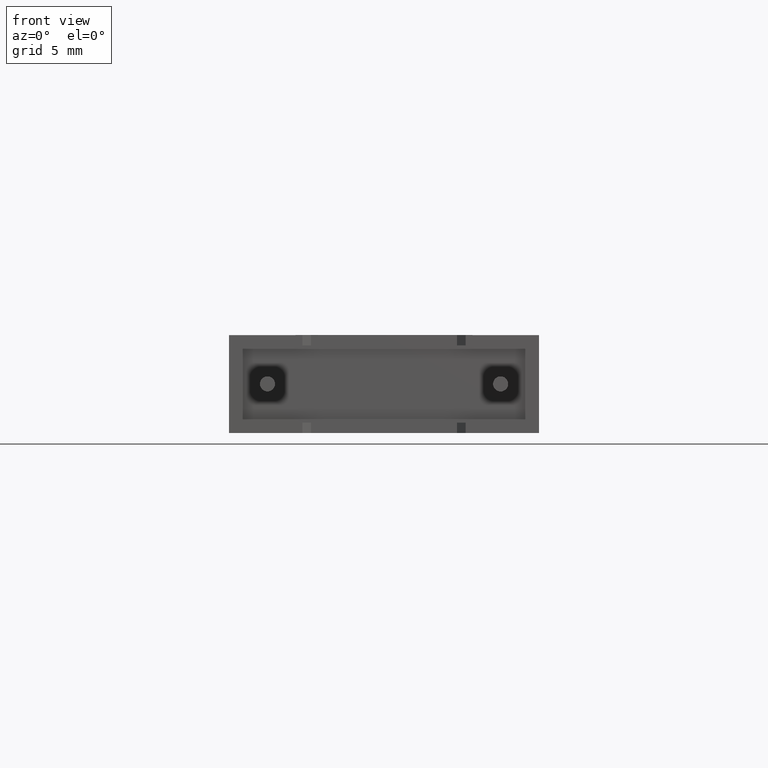
[diagram: clean part render]
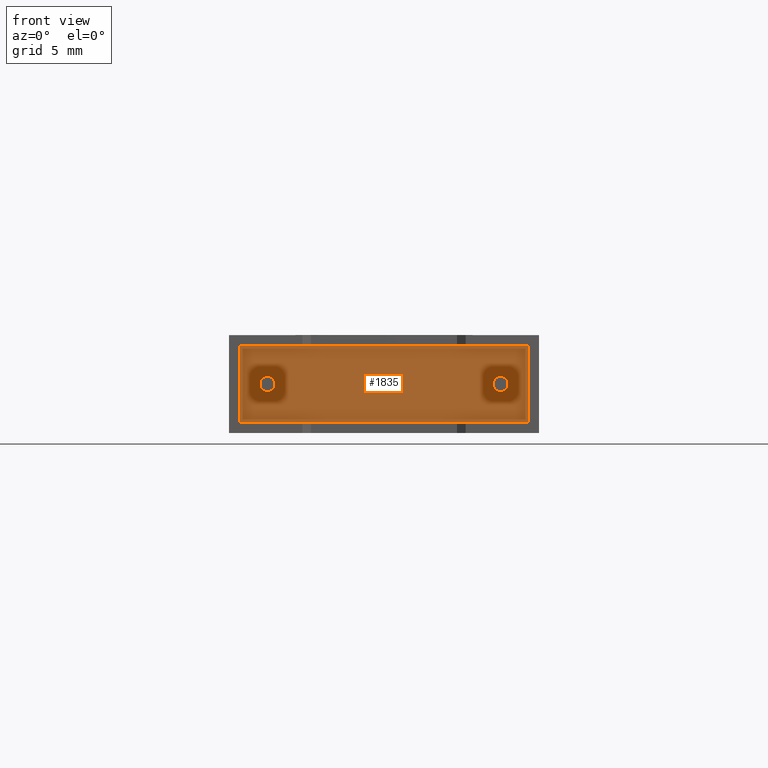
[diagram: same view with one face highlighted and labeled with its STEP entity id]
A machine part, front view. The second image highlights one B-rep face of the part: STEP entity #1835.
In plain terms, the highlighted planar face has unit normal (0, -1, 0).
Its self-contained STEP definition (entity closure, byte-faithful):
#60 = CIRCLE ( 'NONE', #1774, 0.3250000000000003997 ) ;
#152 = FACE_BOUND ( 'NONE', #722, .T. ) ;
#198 = DIRECTION ( 'NONE',  ( 0.000000000000000000, -1.000000000000000000, 0.000000000000000000 ) ) ;
#251 = LINE ( 'NONE', #1250, #1724 ) ;
#301 = ORIENTED_EDGE ( 'NONE', *, *, #1941, .T. ) ;
#313 = CARTESIAN_POINT ( 'NONE',  ( 11.65000000000000036, 0.7500000000000006661, 2.100000000000000089 ) ) ;
#340 = DIRECTION ( 'NONE',  ( 0.000000000000000000, 0.000000000000000000, -1.000000000000000000 ) ) ;
#400 = FACE_BOUND ( 'NONE', #1757, .T. ) ;
#419 = DIRECTION ( 'NONE',  ( 0.000000000000000000, -0.000000000000000000, -1.000000000000000000 ) ) ;
#429 = DIRECTION ( 'NONE',  ( 0.000000000000000000, 0.000000000000000000, -1.000000000000000000 ) ) ;
#432 = CARTESIAN_POINT ( 'NONE',  ( 12.85666671100000080, 0.7500000000000000000, 0.4433332890000000193 ) ) ;
#467 = EDGE_CURVE ( 'NONE', #1793, #1738, #251, .T. ) ;
#521 = LINE ( 'NONE', #2851, #1042 ) ;
#552 = DIRECTION ( 'NONE',  ( 1.000000000000000000, 0.000000000000000000, 8.734174259461895022E-18 ) ) ;
#613 = VERTEX_POINT ( 'NONE', #2684 ) ;
#691 = DIRECTION ( 'NONE',  ( 0.000000000000000000, -1.000000000000000000, 0.000000000000000000 ) ) ;
#713 = EDGE_CURVE ( 'NONE', #2536, #1793, #1587, .T. ) ;
#722 = EDGE_LOOP ( 'NONE', ( #2267, #2289 ) ) ;
#747 = ORIENTED_EDGE ( 'NONE', *, *, #1788, .F. ) ;
#796 = CIRCLE ( 'NONE', #2522, 0.3250000000000003997 ) ;
#913 = CARTESIAN_POINT ( 'NONE',  ( 1.650000000000000355, 0.7500000000000000000, 2.100000000000000089 ) ) ;
#937 = EDGE_CURVE ( 'NONE', #1738, #2846, #1507, .T. ) ;
#974 = ORIENTED_EDGE ( 'NONE', *, *, #1956, .F. ) ;
#1009 = ORIENTED_EDGE ( 'NONE', *, *, #713, .T. ) ;
#1042 = VECTOR ( 'NONE', #552, 1000.000000000000000 ) ;
#1122 = DIRECTION ( 'NONE',  ( 0.000000000000000000, 0.000000000000000000, 1.000000000000000000 ) ) ;
#1124 = ORIENTED_EDGE ( 'NONE', *, *, #937, .T. ) ;
#1131 = VECTOR ( 'NONE', #1122, 1000.000000000000000 ) ;
#1212 = DIRECTION ( 'NONE',  ( 0.000000000000000000, 0.000000000000000000, -1.000000000000000000 ) ) ;
#1250 = CARTESIAN_POINT ( 'NONE',  ( 12.85666671100000080, 0.7500000000000000000, 3.756666711000000713 ) ) ;
#1357 = DIRECTION ( 'NONE',  ( 0.000000000000000000, -1.000000000000000000, 0.000000000000000000 ) ) ;
#1405 = CARTESIAN_POINT ( 'NONE',  ( 1.650000000000000355, 0.7500000000000000000, 2.100000000000000089 ) ) ;
#1421 = AXIS2_PLACEMENT_3D ( 'NONE', #313, #1494, #2612 ) ;
#1439 = VERTEX_POINT ( 'NONE', #2108 ) ;
#1457 = VERTEX_POINT ( 'NONE', #2125 ) ;
#1479 = CIRCLE ( 'NONE', #2271, 0.3250000000000003997 ) ;
#1490 = CARTESIAN_POINT ( 'NONE',  ( 11.65000000000000036, 0.7500000000000006661, 2.100000000000000089 ) ) ;
#1494 = DIRECTION ( 'NONE',  ( 0.000000000000000000, -1.000000000000000000, 0.000000000000000000 ) ) ;
#1507 = LINE ( 'NONE', #2451, #2623 ) ;
#1587 = LINE ( 'NONE', #432, #1131 ) ;
#1629 = DIRECTION ( 'NONE',  ( 0.000000000000000000, 0.000000000000000000, -1.000000000000000000 ) ) ;
#1661 = DIRECTION ( 'NONE',  ( 0.000000000000000000, -1.000000000000000000, 0.000000000000000000 ) ) ;
#1724 = VECTOR ( 'NONE', #2891, 1000.000000000000000 ) ;
#1738 = VERTEX_POINT ( 'NONE', #2194 ) ;
#1757 = EDGE_LOOP ( 'NONE', ( #747, #974 ) ) ;
#1774 = AXIS2_PLACEMENT_3D ( 'NONE', #913, #691, #1629 ) ;
#1783 = CARTESIAN_POINT ( 'NONE',  ( 12.85666671100000080, 0.7500000000000000000, 3.756666711000000713 ) ) ;
#1788 = EDGE_CURVE ( 'NONE', #613, #1439, #2122, .T. ) ;
#1791 = CARTESIAN_POINT ( 'NONE',  ( 1.650000000000000355, 0.7500000000000000000, 2.425000000000001155 ) ) ;
#1793 = VERTEX_POINT ( 'NONE', #1783 ) ;
#1835 = ADVANCED_FACE ( 'NONE', ( #400, #2696, #152 ), #2938, .T. ) ;
#1849 = EDGE_CURVE ( 'NONE', #2987, #1457, #1479, .T. ) ;
#1941 = EDGE_CURVE ( 'NONE', #2846, #2536, #521, .T. ) ;
#1956 = EDGE_CURVE ( 'NONE', #1439, #613, #796, .T. ) ;
#2108 = CARTESIAN_POINT ( 'NONE',  ( 11.65000000000000036, 0.7500000000000006661, 1.774999999999999911 ) ) ;
#2122 = CIRCLE ( 'NONE', #1421, 0.3250000000000003997 ) ;
#2125 = CARTESIAN_POINT ( 'NONE',  ( 1.650000000000000355, 0.7500000000000000000, 1.774999999999999911 ) ) ;
#2147 = EDGE_CURVE ( 'NONE', #1457, #2987, #60, .T. ) ;
#2194 = CARTESIAN_POINT ( 'NONE',  ( 0.4433332890000000193, 0.7500000000000000000, 3.756666710999999381 ) ) ;
#2198 = EDGE_LOOP ( 'NONE', ( #1124, #301, #1009, #2230 ) ) ;
#2230 = ORIENTED_EDGE ( 'NONE', *, *, #467, .T. ) ;
#2267 = ORIENTED_EDGE ( 'NONE', *, *, #1849, .F. ) ;
#2271 = AXIS2_PLACEMENT_3D ( 'NONE', #1405, #198, #429 ) ;
#2289 = ORIENTED_EDGE ( 'NONE', *, *, #2147, .F. ) ;
#2371 = AXIS2_PLACEMENT_3D ( 'NONE', #2808, #1357, #419 ) ;
#2451 = CARTESIAN_POINT ( 'NONE',  ( 0.4433332890000000193, 0.7500000000000000000, 3.756666710999999381 ) ) ;
#2522 = AXIS2_PLACEMENT_3D ( 'NONE', #1490, #1661, #1212 ) ;
#2533 = CARTESIAN_POINT ( 'NONE',  ( 12.85666671100000080, 0.7500000000000000000, 0.4433332890000000193 ) ) ;
#2536 = VERTEX_POINT ( 'NONE', #2533 ) ;
#2612 = DIRECTION ( 'NONE',  ( 0.000000000000000000, 0.000000000000000000, -1.000000000000000000 ) ) ;
#2623 = VECTOR ( 'NONE', #340, 1000.000000000000000 ) ;
#2627 = CARTESIAN_POINT ( 'NONE',  ( 0.4433332890000000193, 0.7500000000000000000, 0.4433332889999999082 ) ) ;
#2684 = CARTESIAN_POINT ( 'NONE',  ( 11.65000000000000036, 0.7500000000000006661, 2.425000000000001155 ) ) ;
#2696 = FACE_OUTER_BOUND ( 'NONE', #2198, .T. ) ;
#2808 = CARTESIAN_POINT ( 'NONE',  ( 0.000000000000000000, 0.7500000000000000000, 0.000000000000000000 ) ) ;
#2846 = VERTEX_POINT ( 'NONE', #2627 ) ;
#2851 = CARTESIAN_POINT ( 'NONE',  ( 0.4433332890000000193, 0.7500000000000000000, 0.4433332889999999082 ) ) ;
#2891 = DIRECTION ( 'NONE',  ( -1.000000000000000000, 0.000000000000000000, -1.048100911135427464E-16 ) ) ;
#2938 = PLANE ( 'NONE',  #2371 ) ;
#2987 = VERTEX_POINT ( 'NONE', #1791 ) ;